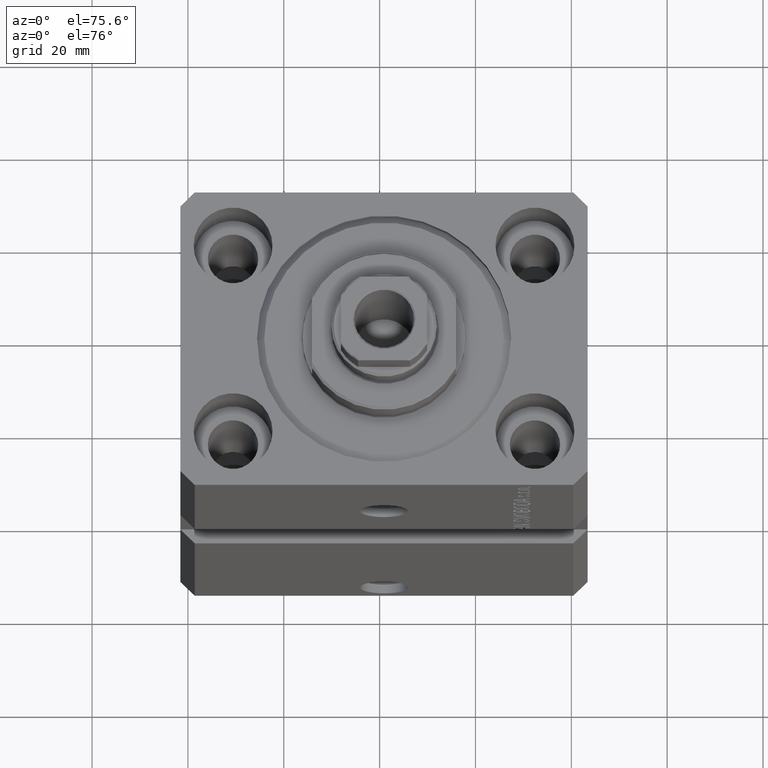
[diagram: clean part render]
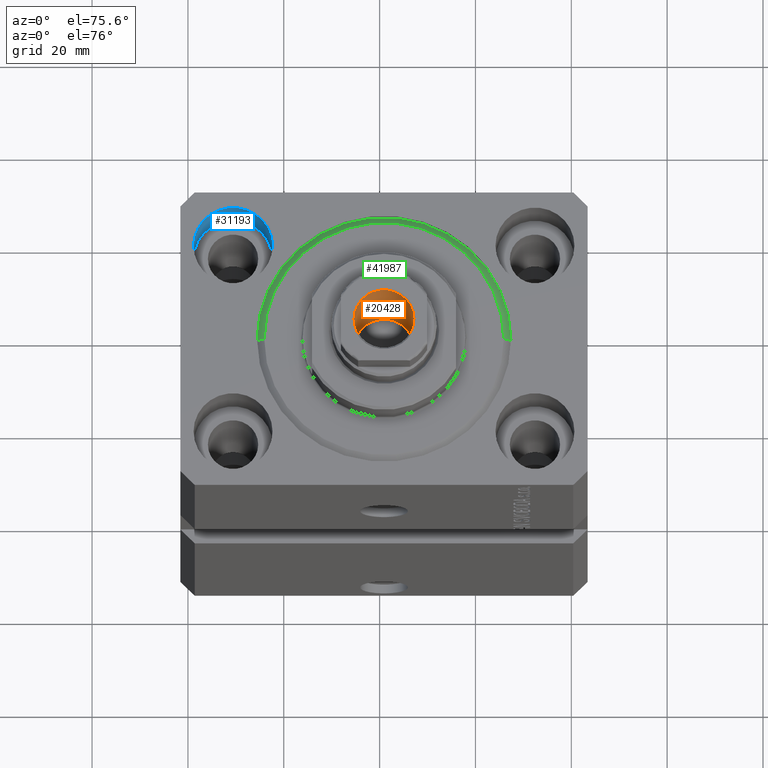
[diagram: same view with three faces highlighted in distinct colors, each labeled with its STEP entity id]
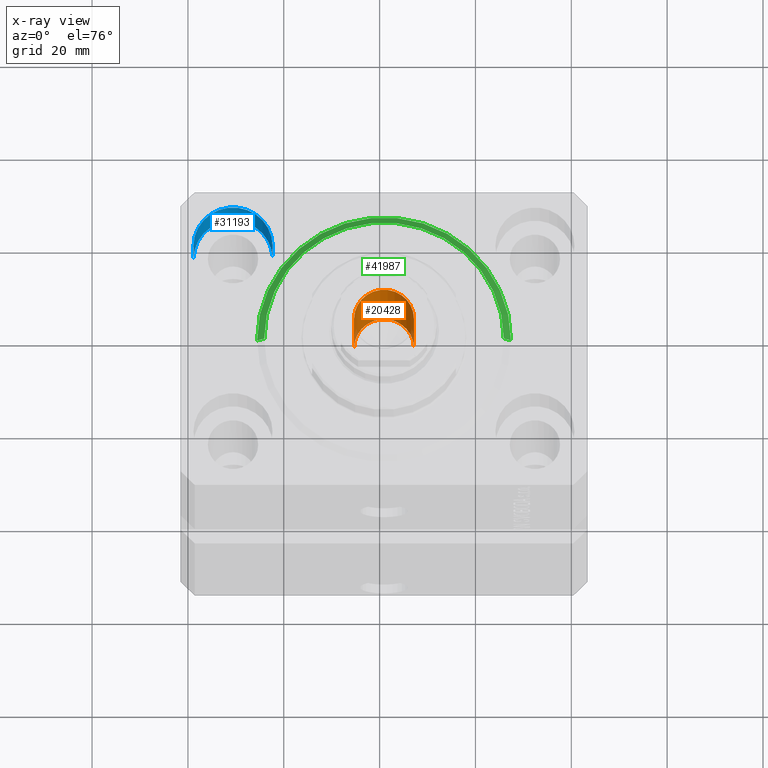
[diagram: x-ray of the same camera — body ghosted, the three highlighted faces saturated]
A machine part, auxiliary view with three faces highlighted in distinct colors.
The next image is the same camera in x-ray (body ghosted, the three faces saturated) — at least one of them is partly hidden behind the body in this view.
Their STEP definitions:

[orange] entity #20428 — the highlighted cylindrical surface (edge-blend (fillet) strip) has radius 6.25 mm, axis along (0, 0, 1).
#559 = DIRECTION ( 'NONE',  ( 0.000000000000000000, 0.000000000000000000, 1.000000000000000000 ) ) ;
#996 = CARTESIAN_POINT ( 'NONE',  ( 0.000000000000000000, 0.000000000000000000, 98.29999999999999716 ) ) ;
#1358 = LINE ( 'NONE', #11332, #14823 ) ;
#5257 = EDGE_LOOP ( 'NONE', ( #29848, #6653, #33661, #37065 ) ) ;
#5900 = VERTEX_POINT ( 'NONE', #7711 ) ;
#6436 = CARTESIAN_POINT ( 'NONE',  ( -6.249999999999993783, 7.654042494670949718E-16, 73.59999999999999432 ) ) ;
#6653 = ORIENTED_EDGE ( 'NONE', *, *, #19197, .F. ) ;
#6922 = EDGE_CURVE ( 'NONE', #12638, #5900, #1358, .T. ) ;
#7711 = CARTESIAN_POINT ( 'NONE',  ( -6.249999999999995559, 7.654042494670950704E-16, 98.29999999999999716 ) ) ;
#9376 = DIRECTION ( 'NONE',  ( -0.000000000000000000, -0.000000000000000000, 1.000000000000000000 ) ) ;
#10656 = AXIS2_PLACEMENT_3D ( 'NONE', #32962, #9376, #23204 ) ;
#11332 = CARTESIAN_POINT ( 'NONE',  ( -6.249999999999995559, 7.654042494670950704E-16, 98.60000000000000853 ) ) ;
#12638 = VERTEX_POINT ( 'NONE', #6436 ) ;
#12766 = CYLINDRICAL_SURFACE ( 'NONE', #10656, 6.249999999999995559 ) ;
#13091 = CARTESIAN_POINT ( 'NONE',  ( 0.000000000000000000, 0.000000000000000000, 73.59999999999999432 ) ) ;
#13147 = LINE ( 'NONE', #41256, #21684 ) ;
#13764 = CIRCLE ( 'NONE', #39112, 6.249999999999995559 ) ;
#14805 = DIRECTION ( 'NONE',  ( 1.000000000000000000, 0.000000000000000000, 0.000000000000000000 ) ) ;
#14823 = VECTOR ( 'NONE', #24938, 1000.000000000000000 ) ;
#19197 = EDGE_CURVE ( 'NONE', #21370, #12638, #37429, .T. ) ;
#20428 = ADVANCED_FACE ( 'NONE', ( #43830 ), #12766, .F. ) ;
#21370 = VERTEX_POINT ( 'NONE', #28506 ) ;
#21684 = VECTOR ( 'NONE', #37198, 1000.000000000000000 ) ;
#23204 = DIRECTION ( 'NONE',  ( 1.000000000000000000, 0.000000000000000000, 0.000000000000000000 ) ) ;
#24938 = DIRECTION ( 'NONE',  ( -0.000000000000000000, -0.000000000000000000, 1.000000000000000000 ) ) ;
#28506 = CARTESIAN_POINT ( 'NONE',  ( 6.249999999999993783, 0.000000000000000000, 73.59999999999999432 ) ) ;
#29848 = ORIENTED_EDGE ( 'NONE', *, *, #6922, .F. ) ;
#30361 = EDGE_CURVE ( 'NONE', #21370, #33249, #13147, .T. ) ;
#32962 = CARTESIAN_POINT ( 'NONE',  ( 0.000000000000000000, 0.000000000000000000, 98.60000000000000853 ) ) ;
#33249 = VERTEX_POINT ( 'NONE', #34031 ) ;
#33661 = ORIENTED_EDGE ( 'NONE', *, *, #30361, .T. ) ;
#34031 = CARTESIAN_POINT ( 'NONE',  ( 6.249999999999995559, 0.000000000000000000, 98.29999999999999716 ) ) ;
#36255 = EDGE_CURVE ( 'NONE', #33249, #5900, #13764, .T. ) ;
#37065 = ORIENTED_EDGE ( 'NONE', *, *, #36255, .T. ) ;
#37198 = DIRECTION ( 'NONE',  ( -0.000000000000000000, -0.000000000000000000, 1.000000000000000000 ) ) ;
#37429 = CIRCLE ( 'NONE', #43916, 6.249999999999993783 ) ;
#39112 = AXIS2_PLACEMENT_3D ( 'NONE', #996, #559, #14805 ) ;
#40756 = DIRECTION ( 'NONE',  ( -0.000000000000000000, -0.000000000000000000, 1.000000000000000000 ) ) ;
#41256 = CARTESIAN_POINT ( 'NONE',  ( 6.249999999999995559, 0.000000000000000000, 98.60000000000000853 ) ) ;
#43830 = FACE_OUTER_BOUND ( 'NONE', #5257, .T. ) ;
#43916 = AXIS2_PLACEMENT_3D ( 'NONE', #13091, #40756, #44596 ) ;
#44596 = DIRECTION ( 'NONE',  ( 1.000000000000000000, 0.000000000000000000, 0.000000000000000000 ) ) ;

[blue] entity #31193 — the highlighted cylindrical surface (partial cylindrical patch) has radius 8.25 mm, axis along (0, 0, 1).
#443 = DIRECTION ( 'NONE',  ( 1.000000000000000000, 0.000000000000000000, 0.000000000000000000 ) ) ;
#659 = DIRECTION ( 'NONE',  ( 0.000000000000000000, 0.000000000000000000, 1.000000000000000000 ) ) ;
#712 = CIRCLE ( 'NONE', #1412, 8.250000000000000000 ) ;
#1412 = AXIS2_PLACEMENT_3D ( 'NONE', #4071, #659, #443 ) ;
#3630 = VECTOR ( 'NONE', #43241, 1000.000000000000000 ) ;
#4053 = FACE_OUTER_BOUND ( 'NONE', #15262, .T. ) ;
#4071 = CARTESIAN_POINT ( 'NONE',  ( -31.50000000000000000, 20.00000000000000000, -11.00000000000000000 ) ) ;
#4996 = EDGE_CURVE ( 'NONE', #7127, #10137, #38694, .T. ) ;
#7127 = VERTEX_POINT ( 'NONE', #36190 ) ;
#7463 = VERTEX_POINT ( 'NONE', #29295 ) ;
#10137 = VERTEX_POINT ( 'NONE', #37183 ) ;
#13132 = CARTESIAN_POINT ( 'NONE',  ( -23.25000000000000000, 20.00000000000000000, -11.00000000000000000 ) ) ;
#13344 = DIRECTION ( 'NONE',  ( -0.000000000000000000, -0.000000000000000000, 1.000000000000000000 ) ) ;
#13735 = AXIS2_PLACEMENT_3D ( 'NONE', #18527, #39383, #17859 ) ;
#14268 = EDGE_CURVE ( 'NONE', #7463, #7127, #24225, .T. ) ;
#15262 = EDGE_LOOP ( 'NONE', ( #20673, #31868, #25234, #23665 ) ) ;
#15564 = LINE ( 'NONE', #19426, #3630 ) ;
#15819 = DIRECTION ( 'NONE',  ( 1.000000000000000000, 0.000000000000000000, 0.000000000000000000 ) ) ;
#17859 = DIRECTION ( 'NONE',  ( 1.000000000000000000, 0.000000000000000000, 0.000000000000000000 ) ) ;
#18527 = CARTESIAN_POINT ( 'NONE',  ( -31.50000000000000000, 20.00000000000000000, -11.00000000000000000 ) ) ;
#19426 = CARTESIAN_POINT ( 'NONE',  ( -39.75000000000000000, 20.00000000000000000, -11.00000000000000000 ) ) ;
#20673 = ORIENTED_EDGE ( 'NONE', *, *, #32109, .F. ) ;
#23084 = DIRECTION ( 'NONE',  ( 0.000000000000000000, 0.000000000000000000, 1.000000000000000000 ) ) ;
#23665 = ORIENTED_EDGE ( 'NONE', *, *, #4996, .T. ) ;
#24225 = LINE ( 'NONE', #13132, #36044 ) ;
#25234 = ORIENTED_EDGE ( 'NONE', *, *, #14268, .T. ) ;
#26485 = CARTESIAN_POINT ( 'NONE',  ( -31.50000000000000000, 20.00000000000000000, 0.000000000000000000 ) ) ;
#29295 = CARTESIAN_POINT ( 'NONE',  ( -23.25000000000000000, 20.00000000000000000, -11.00000000000000000 ) ) ;
#30428 = EDGE_CURVE ( 'NONE', #7463, #42949, #712, .T. ) ;
#31193 = ADVANCED_FACE ( 'NONE', ( #4053 ), #32368, .F. ) ;
#31868 = ORIENTED_EDGE ( 'NONE', *, *, #30428, .F. ) ;
#32109 = EDGE_CURVE ( 'NONE', #42949, #10137, #15564, .T. ) ;
#32368 = CYLINDRICAL_SURFACE ( 'NONE', #13735, 8.250000000000000000 ) ;
#32754 = CARTESIAN_POINT ( 'NONE',  ( -39.75000000000000000, 20.00000000000000000, -11.00000000000000000 ) ) ;
#36044 = VECTOR ( 'NONE', #13344, 1000.000000000000000 ) ;
#36190 = CARTESIAN_POINT ( 'NONE',  ( -23.25000000000000000, 20.00000000000000000, 0.000000000000000000 ) ) ;
#37183 = CARTESIAN_POINT ( 'NONE',  ( -39.75000000000000000, 20.00000000000000000, 0.000000000000000000 ) ) ;
#38694 = CIRCLE ( 'NONE', #40116, 8.250000000000000000 ) ;
#39383 = DIRECTION ( 'NONE',  ( -0.000000000000000000, -0.000000000000000000, 1.000000000000000000 ) ) ;
#40116 = AXIS2_PLACEMENT_3D ( 'NONE', #26485, #23084, #15819 ) ;
#42949 = VERTEX_POINT ( 'NONE', #32754 ) ;
#43241 = DIRECTION ( 'NONE',  ( -0.000000000000000000, -0.000000000000000000, 1.000000000000000000 ) ) ;

[green] entity #41987 — the highlighted conical surface has half-angle 45 deg.
#252 = VERTEX_POINT ( 'NONE', #40233 ) ;
#2987 = CARTESIAN_POINT ( 'NONE',  ( 0.000000000000000000, 0.000000000000000000, 1.500000000000018652 ) ) ;
#3115 = LINE ( 'NONE', #3571, #41867 ) ;
#3237 = EDGE_CURVE ( 'NONE', #28616, #37438, #8440, .T. ) ;
#3571 = CARTESIAN_POINT ( 'NONE',  ( 26.50000000000000355, 0.000000000000000000, 1.500000000000018652 ) ) ;
#4669 = CARTESIAN_POINT ( 'NONE',  ( 26.50000000000000355, 3.245314017740486554E-15, 1.500000000000018652 ) ) ;
#5483 = DIRECTION ( 'NONE',  ( -0.7071067811865483499, 8.659560562354942719E-17, 0.7071067811865466846 ) ) ;
#6034 = ORIENTED_EDGE ( 'NONE', *, *, #19486, .F. ) ;
#7811 = CARTESIAN_POINT ( 'NONE',  ( 0.000000000000000000, 0.000000000000000000, 0.000000000000000000 ) ) ;
#8018 = AXIS2_PLACEMENT_3D ( 'NONE', #34035, #22913, #41047 ) ;
#8440 = LINE ( 'NONE', #42008, #39363 ) ;
#9654 = CARTESIAN_POINT ( 'NONE',  ( -24.99999999999998224, 3.153465507804433615E-15, 0.000000000000000000 ) ) ;
#15690 = ORIENTED_EDGE ( 'NONE', *, *, #3237, .T. ) ;
#16610 = EDGE_LOOP ( 'NONE', ( #6034, #15690, #18023, #36850 ) ) ;
#18023 = ORIENTED_EDGE ( 'NONE', *, *, #37497, .F. ) ;
#19486 = EDGE_CURVE ( 'NONE', #28616, #252, #40288, .T. ) ;
#20431 = DIRECTION ( 'NONE',  ( -0.000000000000000000, -0.000000000000000000, 1.000000000000000000 ) ) ;
#21175 = CONICAL_SURFACE ( 'NONE', #28436, 26.50000000000000355, 0.7853981633974495002 ) ;
#22913 = DIRECTION ( 'NONE',  ( -0.000000000000000000, -0.000000000000000000, 1.000000000000000000 ) ) ;
#26833 = EDGE_CURVE ( 'NONE', #252, #32334, #3115, .T. ) ;
#27560 = CIRCLE ( 'NONE', #8018, 26.50000000000000355 ) ;
#28221 = DIRECTION ( 'NONE',  ( -0.000000000000000000, -0.000000000000000000, -1.000000000000000000 ) ) ;
#28436 = AXIS2_PLACEMENT_3D ( 'NONE', #2987, #20431, #34051 ) ;
#28616 = VERTEX_POINT ( 'NONE', #9654 ) ;
#32334 = VERTEX_POINT ( 'NONE', #4669 ) ;
#34035 = CARTESIAN_POINT ( 'NONE',  ( 0.000000000000000000, 0.000000000000000000, 1.500000000000018652 ) ) ;
#34051 = DIRECTION ( 'NONE',  ( 1.000000000000000000, 0.000000000000000000, 0.000000000000000000 ) ) ;
#36850 = ORIENTED_EDGE ( 'NONE', *, *, #26833, .F. ) ;
#37362 = DIRECTION ( 'NONE',  ( 0.7071067811865483499, 0.000000000000000000, 0.7071067811865466846 ) ) ;
#37438 = VERTEX_POINT ( 'NONE', #37661 ) ;
#37497 = EDGE_CURVE ( 'NONE', #32334, #37438, #27560, .T. ) ;
#37661 = CARTESIAN_POINT ( 'NONE',  ( -26.50000000000000355, 0.000000000000000000, 1.500000000000018652 ) ) ;
#39363 = VECTOR ( 'NONE', #5483, 1000.000000000000000 ) ;
#39520 = DIRECTION ( 'NONE',  ( 1.000000000000000000, 0.000000000000000000, 0.000000000000000000 ) ) ;
#40233 = CARTESIAN_POINT ( 'NONE',  ( 24.99999999999998224, 0.000000000000000000, 0.000000000000000000 ) ) ;
#40288 = CIRCLE ( 'NONE', #41746, 24.99999999999998224 ) ;
#41047 = DIRECTION ( 'NONE',  ( 1.000000000000000000, 0.000000000000000000, 0.000000000000000000 ) ) ;
#41066 = FACE_OUTER_BOUND ( 'NONE', #16610, .T. ) ;
#41746 = AXIS2_PLACEMENT_3D ( 'NONE', #7811, #28221, #39520 ) ;
#41867 = VECTOR ( 'NONE', #37362, 1000.000000000000000 ) ;
#41987 = ADVANCED_FACE ( 'NONE', ( #41066 ), #21175, .T. ) ;
#42008 = CARTESIAN_POINT ( 'NONE',  ( -26.50000000000000355, 3.245314017740486554E-15, 1.500000000000018652 ) ) ;